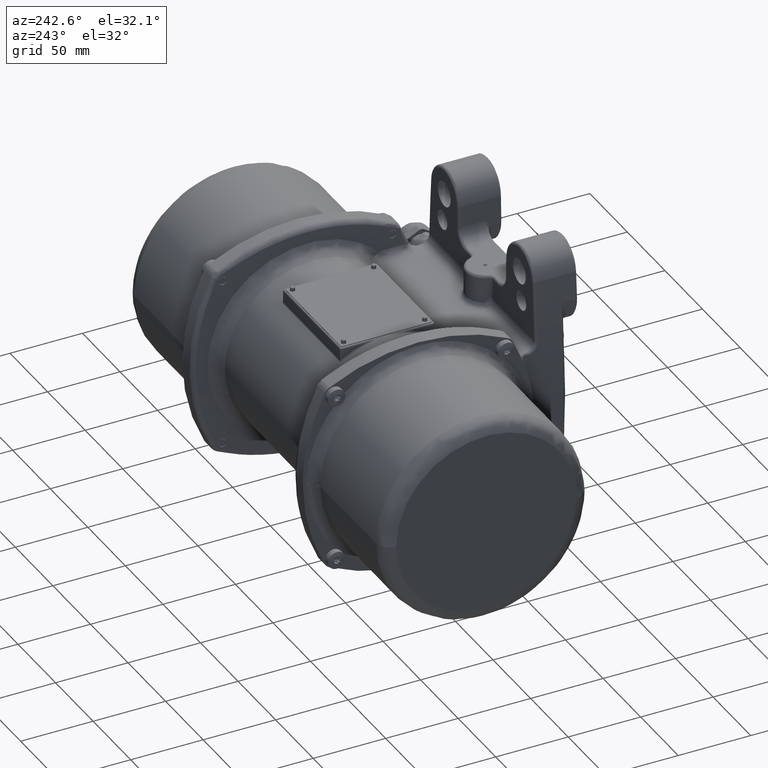
[diagram: clean part render]
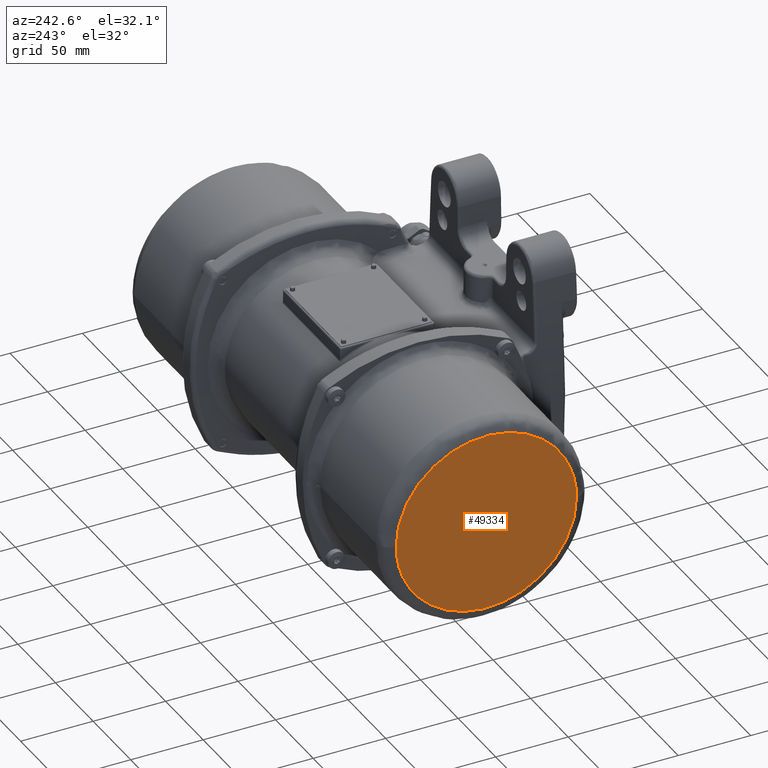
[diagram: same view with one face highlighted and labeled with its STEP entity id]
A machine part, auxiliary view. The second image highlights one B-rep face of the part: STEP entity #49334.
In plain terms, the highlighted planar face has unit normal (-1, -0, -0).
Its self-contained STEP definition (entity closure, byte-faithful):
#6250 = EDGE_CURVE ( 'NONE', #8349, #39655, #23826, .T. ) ;
#8349 = VERTEX_POINT ( 'NONE', #35950 ) ;
#16480 = CARTESIAN_POINT ( 'NONE',  ( -169.9999999999968500, 177.2000000000001900, 124.4000000000005900 ) ) ;
#18743 = EDGE_LOOP ( 'NONE', ( #58486, #78835 ) ) ;
#23826 =( BOUNDED_CURVE ( )  B_SPLINE_CURVE ( 3, ( #28333, #16480, #38723, #60966 ),
 .UNSPECIFIED., .F., .F. ) 
 B_SPLINE_CURVE_WITH_KNOTS ( ( 4, 4 ),
 ( 0.0000000000000000000, 1.000000000000000000 ),
 .UNSPECIFIED. ) 
 CURVE ( )  GEOMETRIC_REPRESENTATION_ITEM ( )  RATIONAL_B_SPLINE_CURVE ( ( 1.000000000000000000, 0.3333333333333327600, 0.3333333333333327600, 1.000000000000000000 ) ) 
 REPRESENTATION_ITEM ( '' )  );
#28333 = CARTESIAN_POINT ( 'NONE',  ( -169.9999999999970200, 177.1999999999999900, 4.866765904878849700E-013 ) ) ;
#31998 = DIRECTION ( 'NONE',  ( 2.843631410202660100E-015, -1.000000000000000000, -3.081487911019575000E-033 ) ) ;
#35950 = CARTESIAN_POINT ( 'NONE',  ( -169.9999999999970200, 177.1999999999999900, 4.866765904878849700E-013 ) ) ;
#38723 = CARTESIAN_POINT ( 'NONE',  ( -169.9999999999965000, 52.79999999999999000, 124.4000000000007200 ) ) ;
#39655 = VERTEX_POINT ( 'NONE', #78657 ) ;
#39998 = DIRECTION ( 'NONE',  ( -1.000000000000000000, -2.843631410202660100E-015, -1.925929944387324400E-034 ) ) ;
#44910 = CARTESIAN_POINT ( 'NONE',  ( -169.9999999999965000, 43.59999999999954700, 4.788339523861451000E-013 ) ) ;
#47182 = CARTESIAN_POINT ( 'NONE',  ( -169.9999999999970200, 177.1999999999999900, 4.866765904878849700E-013 ) ) ;
#49334 = ADVANCED_FACE ( 'NONE', ( #53941 ), #122499, .T. ) ;
#51500 = AXIS2_PLACEMENT_3D ( 'NONE', #44910, #39998, #31998 ) ;
#53941 = FACE_OUTER_BOUND ( 'NONE', #18743, .T. ) ;
#55516 = EDGE_CURVE ( 'NONE', #39655, #8349, #92097, .T. ) ;
#58486 = ORIENTED_EDGE ( 'NONE', *, *, #6250, .F. ) ;
#60966 = CARTESIAN_POINT ( 'NONE',  ( -169.9999999999965000, 52.79999999999939300, 4.788339523861451000E-013 ) ) ;
#78657 = CARTESIAN_POINT ( 'NONE',  ( -169.9999999999965000, 52.79999999999939300, 4.788339523861451000E-013 ) ) ;
#78835 = ORIENTED_EDGE ( 'NONE', *, *, #55516, .F. ) ;
#92097 =( BOUNDED_CURVE ( )  B_SPLINE_CURVE ( 3, ( #102045, #92172, #102540, #47182 ),
 .UNSPECIFIED., .F., .F. ) 
 B_SPLINE_CURVE_WITH_KNOTS ( ( 4, 4 ),
 ( 0.0000000000000000000, 1.000000000000000000 ),
 .UNSPECIFIED. ) 
 CURVE ( )  GEOMETRIC_REPRESENTATION_ITEM ( )  RATIONAL_B_SPLINE_CURVE ( ( 1.000000000000000000, 0.3333333333333324800, 0.3333333333333324800, 1.000000000000000000 ) ) 
 REPRESENTATION_ITEM ( '' )  );
#92172 = CARTESIAN_POINT ( 'NONE',  ( -169.9999999999964800, 52.79999999999941500, -124.3999999999995400 ) ) ;
#102045 = CARTESIAN_POINT ( 'NONE',  ( -169.9999999999965000, 52.79999999999939300, 4.788339523861451000E-013 ) ) ;
#102540 = CARTESIAN_POINT ( 'NONE',  ( -169.9999999999968200, 177.1999999999997600, -124.3999999999999200 ) ) ;
#122499 = PLANE ( 'NONE',  #51500 ) ;